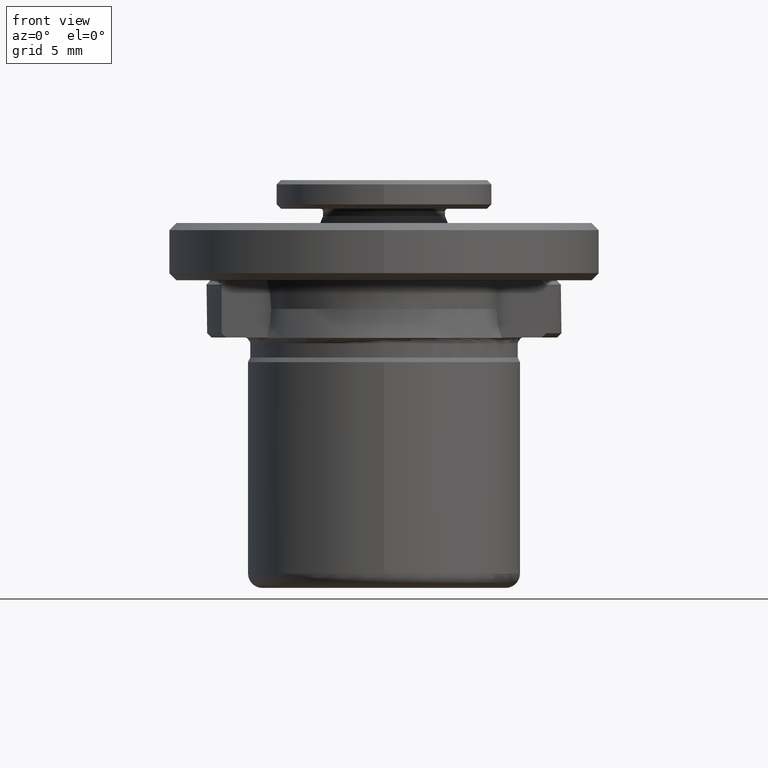
[diagram: clean part render]
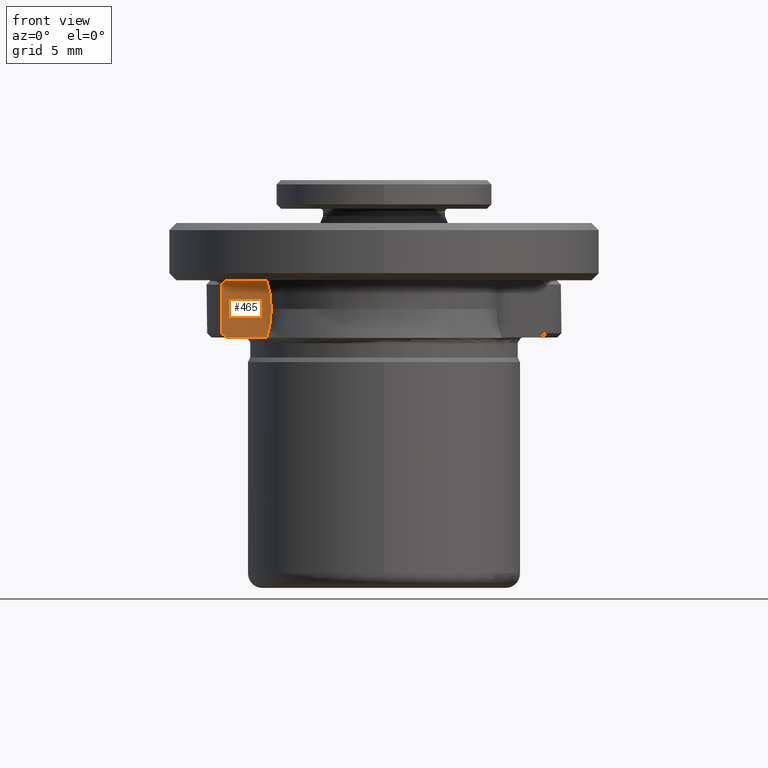
[diagram: same view with one face highlighted and labeled with its STEP entity id]
A machine part, front view. The second image highlights one B-rep face of the part: STEP entity #465.
In plain terms, the highlighted planar face has unit normal (0, 1, 0).
Its self-contained STEP definition (entity closure, byte-faithful):
#40 = ORIENTED_EDGE ( 'NONE', *, *, #1530, .F. ) ;
#60 = LINE ( 'NONE', #809, #871 ) ;
#134 = FACE_OUTER_BOUND ( 'NONE', #1047, .T. ) ;
#188 = EDGE_CURVE ( 'NONE', #1581, #416, #60, .T. ) ;
#189 = VERTEX_POINT ( 'NONE', #746 ) ;
#202 = VECTOR ( 'NONE', #1188, 1000.000000000000000 ) ;
#232 = EDGE_CURVE ( 'NONE', #189, #1373, #1013, .T. ) ;
#254 = CARTESIAN_POINT ( 'NONE',  ( -11.23782482204370200, -5.000000000000000000, 4.949868292643095900 ) ) ;
#281 = CARTESIAN_POINT ( 'NONE',  ( -11.34724636179920400, -5.000000000000000000, 5.049999999814682300 ) ) ;
#284 = CARTESIAN_POINT ( 'NONE',  ( -11.34724636200000000, -5.000000000000000000, 6.725040224999999900 ) ) ;
#316 = ORIENTED_EDGE ( 'NONE', *, *, #827, .T. ) ;
#330 = CARTESIAN_POINT ( 'NONE',  ( -11.34724636212554000, -5.000000000000000000, 8.449999999886687300 ) ) ;
#413 = CARTESIAN_POINT ( 'NONE',  ( -11.12828599720064900, -5.000000000000000000, 4.849864575904326200 ) ) ;
#416 = VERTEX_POINT ( 'NONE', #613 ) ;
#445 = PLANE ( 'NONE',  #1000 ) ;
#465 = ADVANCED_FACE ( 'NONE', ( #134 ), #445, .F. ) ;
#507 = CARTESIAN_POINT ( 'NONE',  ( -11.01862060327093200, -4.999999999999999100, 8.750000000048482100 ) ) ;
#515 = EDGE_CURVE ( 'NONE', #1581, #1650, #1289, .T. ) ;
#540 = EDGE_CURVE ( 'NONE', #189, #1465, #631, .T. ) ;
#613 = CARTESIAN_POINT ( 'NONE',  ( -8.196975813224247200, -5.000000000059219300, 8.750000000000000000 ) ) ;
#631 = LINE ( 'NONE', #1965, #202 ) ;
#645 = ORIENTED_EDGE ( 'NONE', *, *, #188, .F. ) ;
#653 = B_SPLINE_CURVE_WITH_KNOTS ( 'NONE', 3,
 ( #724, #1692, #902, #2016 ),
 .UNSPECIFIED., .F., .F.,
 ( 4, 4 ),
 ( 0.0000000000000000000, 0.002058707677936165400 ),
 .UNSPECIFIED. ) ;
#724 = CARTESIAN_POINT ( 'NONE',  ( -7.877112416672512800, -4.999999997048596400, 6.749999999319591400 ) ) ;
#726 = B_SPLINE_CURVE_WITH_KNOTS ( 'NONE', 3,
 ( #1737, #933, #939, #2060 ),
 .UNSPECIFIED., .F., .F.,
 ( 4, 4 ),
 ( 3.469446951953614200E-018, 0.002031686963425014700 ),
 .UNSPECIFIED. ) ;
#746 = CARTESIAN_POINT ( 'NONE',  ( -8.370334521172623000, -4.999999999999999100, 4.749999999889213100 ) ) ;
#809 = CARTESIAN_POINT ( 'NONE',  ( -9.597103929000001100, -5.000000000000000000, 8.750000000000000000 ) ) ;
#827 = EDGE_CURVE ( 'NONE', #1579, #416, #726, .T. ) ;
#836 = DIRECTION ( 'NONE',  ( 1.000000000000000000, -0.0000000000000000000, -0.0000000000000000000 ) ) ;
#845 = ORIENTED_EDGE ( 'NONE', *, *, #540, .F. ) ;
#852 = DIRECTION ( 'NONE',  ( 0.0000000000000000000, 1.000000000000000000, 0.0000000000000000000 ) ) ;
#862 = VERTEX_POINT ( 'NONE', #281 ) ;
#871 = VECTOR ( 'NONE', #836, 1000.000000000000000 ) ;
#902 = CARTESIAN_POINT ( 'NONE',  ( -7.990553860096998300, -5.000000000000001800, 5.378188955506334200 ) ) ;
#933 = CARTESIAN_POINT ( 'NONE',  ( -7.877112415001547200, -5.000000000000002700, 7.429349860856746100 ) ) ;
#939 = CARTESIAN_POINT ( 'NONE',  ( -7.987555906389316000, -5.000000000000000900, 8.103837295376664000 ) ) ;
#941 = CARTESIAN_POINT ( 'NONE',  ( -11.01862060341406200, -4.999999999999999100, 4.750000000081855400 ) ) ;
#948 = DIRECTION ( 'NONE',  ( 0.0000000000000000000, 0.0000000000000000000, -1.000000000000000000 ) ) ;
#977 = EDGE_CURVE ( 'NONE', #1579, #1373, #653, .T. ) ;
#1000 = AXIS2_PLACEMENT_3D ( 'NONE', #1971, #852, #948 ) ;
#1013 = B_SPLINE_CURVE_WITH_KNOTS ( 'NONE', 3,
 ( #1341, #1489, #1163, #1144 ),
 .UNSPECIFIED., .F., .F.,
 ( 4, 4 ),
 ( 0.0000000000000000000, 0.0001669516248611322700 ),
 .UNSPECIFIED. ) ;
#1047 = EDGE_LOOP ( 'NONE', ( #40, #1467, #845, #2056, #1922, #316, #645, #1852 ) ) ;
#1112 = EDGE_CURVE ( 'NONE', #862, #1465, #1850, .T. ) ;
#1144 = CARTESIAN_POINT ( 'NONE',  ( -8.205382973924146800, -5.000000000000000900, 4.724235040594156700 ) ) ;
#1163 = CARTESIAN_POINT ( 'NONE',  ( -8.259008783760565500, -5.000000000000000000, 4.741517755019041900 ) ) ;
#1188 = DIRECTION ( 'NONE',  ( -1.000000000000000000, 0.0000000000000000000, 0.0000000000000000000 ) ) ;
#1230 = CARTESIAN_POINT ( 'NONE',  ( -11.34724636179920400, -5.000000000000000000, 5.049999999814682300 ) ) ;
#1289 = B_SPLINE_CURVE_WITH_KNOTS ( 'NONE', 3,
 ( #507, #1291, #1324, #1819 ),
 .UNSPECIFIED., .F., .F.,
 ( 4, 4 ),
 ( 7.195280659432918000E-014, 0.0004449661667406607600 ),
 .UNSPECIFIED. ) ;
#1291 = CARTESIAN_POINT ( 'NONE',  ( -11.12828599722805100, -5.000000000000000000, 8.650135424071162800 ) ) ;
#1324 = CARTESIAN_POINT ( 'NONE',  ( -11.23782482238399400, -5.000000000000000000, 8.550131707046439500 ) ) ;
#1341 = CARTESIAN_POINT ( 'NONE',  ( -8.370334521172623000, -4.999999999999999100, 4.749999999889213100 ) ) ;
#1354 = VECTOR ( 'NONE', #1909, 1000.000000000000000 ) ;
#1373 = VERTEX_POINT ( 'NONE', #1864 ) ;
#1465 = VERTEX_POINT ( 'NONE', #941 ) ;
#1467 = ORIENTED_EDGE ( 'NONE', *, *, #1112, .T. ) ;
#1489 = CARTESIAN_POINT ( 'NONE',  ( -8.314009200589170600, -5.000000001018015900, 4.749999998703816400 ) ) ;
#1530 = EDGE_CURVE ( 'NONE', #862, #1650, #1779, .T. ) ;
#1557 = CARTESIAN_POINT ( 'NONE',  ( -11.01862060341406200, -4.999999999999999100, 4.750000000081855400 ) ) ;
#1579 = VERTEX_POINT ( 'NONE', #1916 ) ;
#1581 = VERTEX_POINT ( 'NONE', #1764 ) ;
#1650 = VERTEX_POINT ( 'NONE', #330 ) ;
#1692 = CARTESIAN_POINT ( 'NONE',  ( -7.877112415290540100, -5.000000000000000000, 6.061559036072796200 ) ) ;
#1737 = CARTESIAN_POINT ( 'NONE',  ( -7.877112416672512800, -4.999999997048596400, 6.749999999319591400 ) ) ;
#1764 = CARTESIAN_POINT ( 'NONE',  ( -11.01862060327093200, -4.999999999999999100, 8.750000000048482100 ) ) ;
#1779 = LINE ( 'NONE', #284, #1354 ) ;
#1819 = CARTESIAN_POINT ( 'NONE',  ( -11.34724636212554000, -5.000000000000000000, 8.449999999886687300 ) ) ;
#1850 = B_SPLINE_CURVE_WITH_KNOTS ( 'NONE', 3,
 ( #1230, #254, #413, #1557 ),
 .UNSPECIFIED., .F., .F.,
 ( 4, 4 ),
 ( 0.0000000000000000000, 0.0004449661657595341700 ),
 .UNSPECIFIED. ) ;
#1852 = ORIENTED_EDGE ( 'NONE', *, *, #515, .T. ) ;
#1864 = CARTESIAN_POINT ( 'NONE',  ( -8.205382973924146800, -5.000000000000000900, 4.724235040594156700 ) ) ;
#1909 = DIRECTION ( 'NONE',  ( -0.0000000000000000000, -0.0000000000000000000, 1.000000000000000000 ) ) ;
#1916 = CARTESIAN_POINT ( 'NONE',  ( -7.877112416672512800, -4.999999997048596400, 6.749999999319591400 ) ) ;
#1922 = ORIENTED_EDGE ( 'NONE', *, *, #977, .F. ) ;
#1965 = CARTESIAN_POINT ( 'NONE',  ( -9.597103929000001100, -5.000000000000000000, 4.750000001368473300 ) ) ;
#1971 = CARTESIAN_POINT ( 'NONE',  ( -7.846961496000001400, -5.000000000000000000, 8.750000000000000000 ) ) ;
#2016 = CARTESIAN_POINT ( 'NONE',  ( -8.205382973924146800, -5.000000000000000900, 4.724235040594156700 ) ) ;
#2056 = ORIENTED_EDGE ( 'NONE', *, *, #232, .T. ) ;
#2060 = CARTESIAN_POINT ( 'NONE',  ( -8.196975813224247200, -5.000000000059219300, 8.750000000000000000 ) ) ;